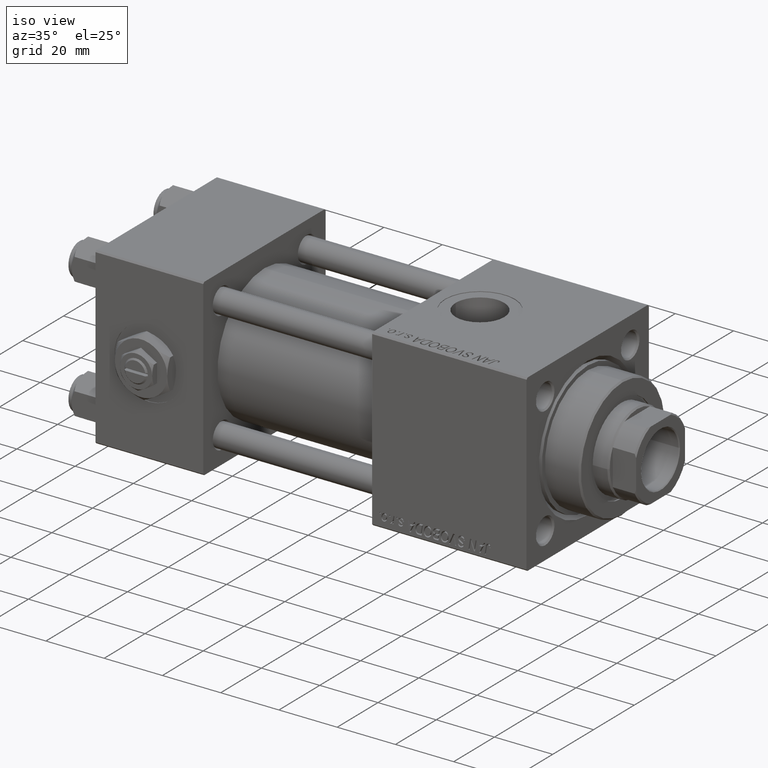
[diagram: clean part render]
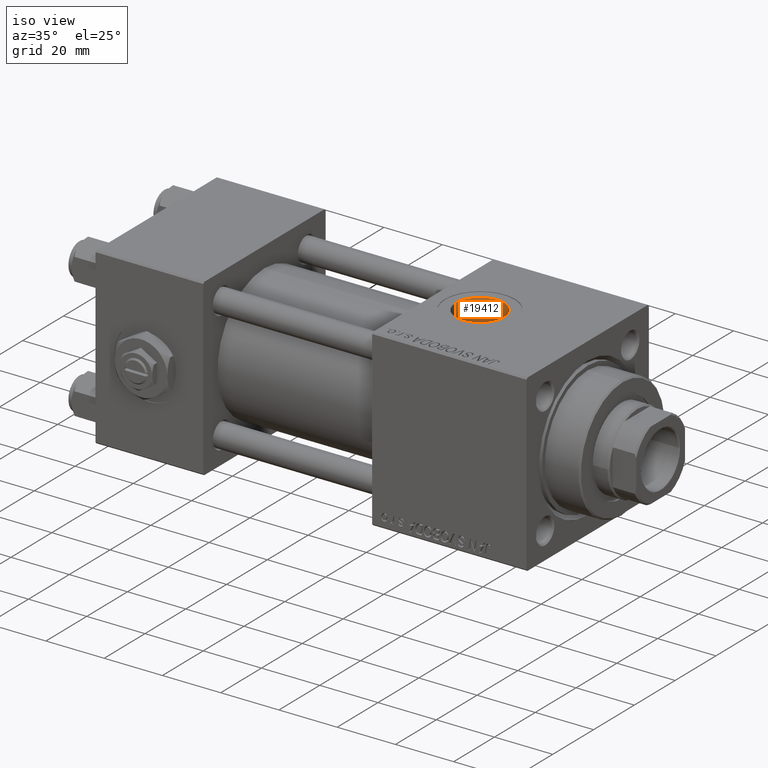
[diagram: same view with one face highlighted and labeled with its STEP entity id]
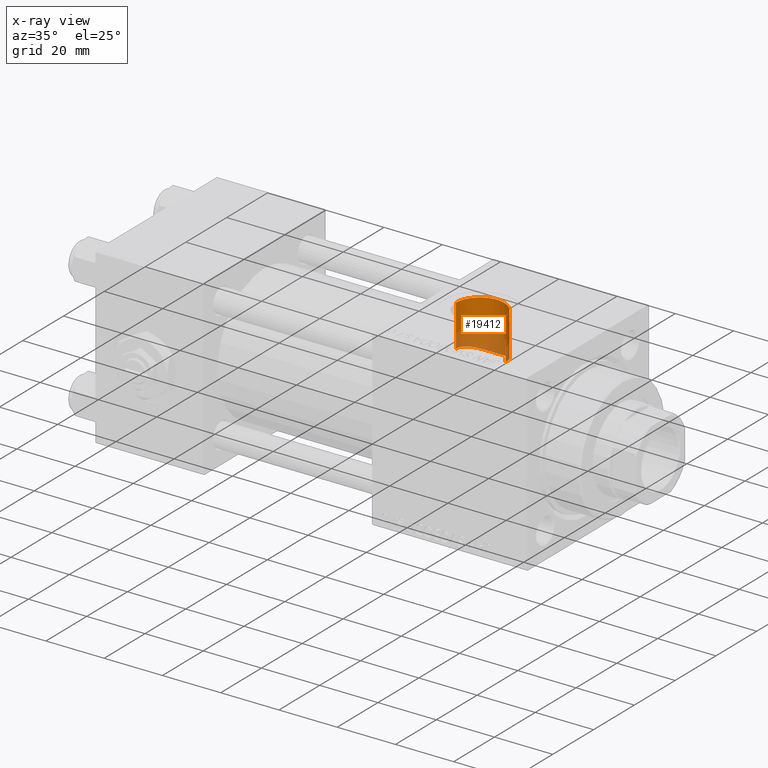
[diagram: x-ray of the same camera — body ghosted, the highlighted face saturated]
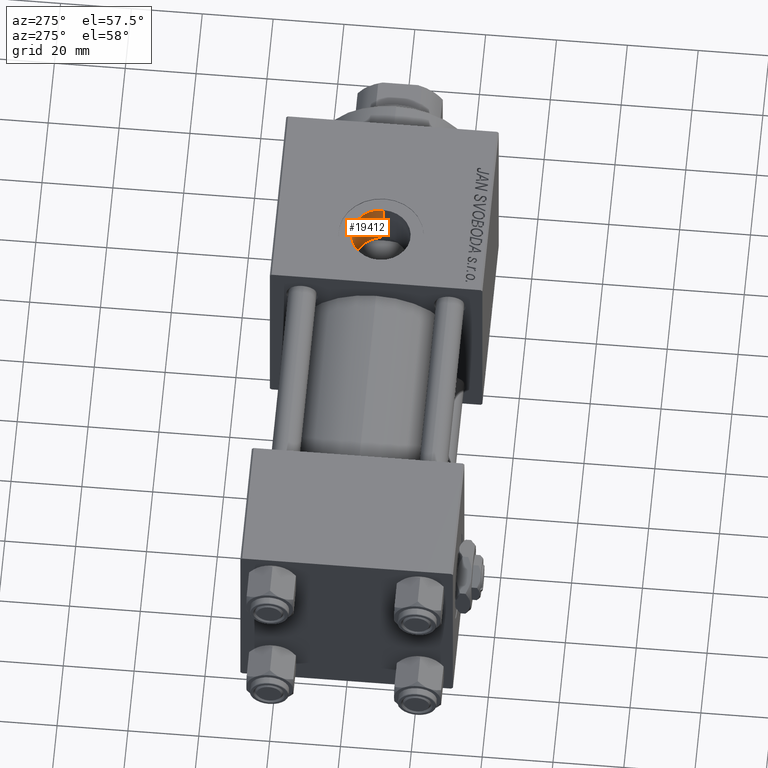
[diagram: same view with one face highlighted and labeled with its STEP entity id]
A machine part, iso view. The second image highlights one B-rep face of the part: STEP entity #19412.
The next image is the same camera in x-ray: the body ghosted, the highlighted face saturated — about 39% of this face is hidden behind the body in this view.
A second angle (auxiliary view) of the same face is appended — the face is thin or edge-on in the first view.
In plain terms, the highlighted cylindrical surface (edge-blend (fillet) strip) has radius 8.33 mm, axis along (0, 0, -1).
Its self-contained STEP definition (entity closure, byte-faithful):
#96 = CARTESIAN_POINT ( 'NONE',  ( 102.6700000000000017, 1.898304232322969090E-15, 15.50000000000000000 ) ) ;
#139 = EDGE_CURVE ( 'NONE', #30262, #9183, #26879, .T. ) ;
#350 = CARTESIAN_POINT ( 'NONE',  ( 105.7567134674389848, 6.493535737546777042, 14.07819411470014082 ) ) ;
#1521 = DIRECTION ( 'NONE',  ( -1.000000000000000000, 0.000000000000000000, 0.000000000000000000 ) ) ;
#2755 = DIRECTION ( 'NONE',  ( 0.000000000000000000, 0.000000000000000000, -1.000000000000000000 ) ) ;
#3447 = ORIENTED_EDGE ( 'NONE', *, *, #15780, .F. ) ;
#3775 = CARTESIAN_POINT ( 'NONE',  ( 114.7878989153691833, 7.423653917640752553, 13.60720322249609993 ) ) ;
#4028 = CARTESIAN_POINT ( 'NONE',  ( 119.2535736795806400, 1.251879847823932801, 15.45901168942802606 ) ) ;
#4123 = CARTESIAN_POINT ( 'NONE',  ( 119.2999999999999829, 0.7063285354565354002, 22.48891060056044466 ) ) ;
#4539 = CARTESIAN_POINT ( 'NONE',  ( 109.5605833038423214, 8.209149030830989346, 13.14769526555239132 ) ) ;
#5209 = VECTOR ( 'NONE', #24368, 1000.000000000000000 ) ;
#7006 = EDGE_LOOP ( 'NONE', ( #50660, #48804, #46075, #8341, #3447, #15831 ) ) ;
#7716 = CARTESIAN_POINT ( 'NONE',  ( 108.0235363201843626, 7.798107477347283378, 13.39787891672381726 ) ) ;
#7969 = CARTESIAN_POINT ( 'NONE',  ( 102.7748422588737753, 1.345113678925218048, 15.44384467796440674 ) ) ;
#8341 = ORIENTED_EDGE ( 'NONE', *, *, #139, .T. ) ;
#8487 = CARTESIAN_POINT ( 'NONE',  ( 103.7382412053277392, 4.114622947877636605, 14.95093430025992198 ) ) ;
#8740 = CARTESIAN_POINT ( 'NONE',  ( 115.7013846757646007, 6.896553212426882240, 13.88449017423041454 ) ) ;
#9183 = VERTEX_POINT ( 'NONE', #9905 ) ;
#9905 = CARTESIAN_POINT ( 'NONE',  ( 119.2999999999999545, 0.7063285354568809016, 15.48389808801386103 ) ) ;
#10271 = CARTESIAN_POINT ( 'NONE',  ( 119.3300000000000125, 2.755455270027974659E-15, 22.50000000000000355 ) ) ;
#11068 = VERTEX_POINT ( 'NONE', #41900 ) ;
#11652 = CARTESIAN_POINT ( 'NONE',  ( 109.2976579557377619, 8.158530844714508845, 13.17929287996982524 ) ) ;
#12158 = CARTESIAN_POINT ( 'NONE',  ( 116.9021014551138506, 5.901284207169522844, 14.33759116759386565 ) ) ;
#12564 = VERTEX_POINT ( 'NONE', #10271 ) ;
#12666 = CARTESIAN_POINT ( 'NONE',  ( 113.5653903393931046, 7.929573453247115822, 13.31850891624567446 ) ) ;
#14486 = EDGE_CURVE ( 'NONE', #25489, #11068, #47207, .T. ) ;
#15581 = CARTESIAN_POINT ( 'NONE',  ( 110.0961245563538142, 8.285231283310338313, 13.09988401430630311 ) ) ;
#15780 = EDGE_CURVE ( 'NONE', #20508, #9183, #21437, .T. ) ;
#15831 = ORIENTED_EDGE ( 'NONE', *, *, #19497, .T. ) ;
#15837 = CARTESIAN_POINT ( 'NONE',  ( 118.5428870207783518, 3.544564506934797521, 15.09123298641111077 ) ) ;
#16094 = CARTESIAN_POINT ( 'NONE',  ( 104.3108638884341275, 4.991865470557748097, 14.68134318030006291 ) ) ;
#16348 = CARTESIAN_POINT ( 'NONE',  ( 108.5224199253086539, 7.970776178815770052, 13.29429473676391460 ) ) ;
#16587 = VECTOR ( 'NONE', #2755, 1000.000000000000000 ) ;
#16610 = CARTESIAN_POINT ( 'NONE',  ( 103.0866881673992594, 2.655374492085076366, 15.27912538186902758 ) ) ;
#19366 = CARTESIAN_POINT ( 'NONE',  ( 119.3300000000000125, 0.2354428451521802246, 22.50000000000000355 ) ) ;
#19412 = ADVANCED_FACE ( 'NONE', ( #28842 ), #33835, .F. ) ;
#19497 = EDGE_CURVE ( 'NONE', #20508, #12564, #29378, .T. ) ;
#19616 = CARTESIAN_POINT ( 'NONE',  ( 119.3200361445783102, 0.4708856903043578401, 22.49630535626710781 ) ) ;
#20508 = VERTEX_POINT ( 'NONE', #44544 ) ;
#21049 = VECTOR ( 'NONE', #33283, 1000.000000000000000 ) ;
#21437 = LINE ( 'NONE', #33001, #5209 ) ;
#23730 = CARTESIAN_POINT ( 'NONE',  ( 117.9017814515971025, 4.693120186999104604, 14.77885283960388918 ) ) ;
#23987 = CARTESIAN_POINT ( 'NONE',  ( 118.9347458643765236, 2.549478185781939743, 15.29108801674690810 ) ) ;
#24249 = CARTESIAN_POINT ( 'NONE',  ( 104.6351521567280116, 5.399275359235517158, 14.53490046566677663 ) ) ;
#24368 = DIRECTION ( 'NONE',  ( 0.000000000000000000, 0.000000000000000000, -1.000000000000000000 ) ) ;
#24505 = CARTESIAN_POINT ( 'NONE',  ( 106.3914020546077808, 6.943847275614563941, 13.85860288735606716 ) ) ;
#24577 = AXIS2_PLACEMENT_3D ( 'NONE', #44363, #31785, #44611 ) ;
#24764 = CARTESIAN_POINT ( 'NONE',  ( 116.1213706297517092, 6.590259460215649234, 14.03424939317711662 ) ) ;
#25489 = VERTEX_POINT ( 'NONE', #34079 ) ;
#25887 = CARTESIAN_POINT ( 'NONE',  ( 102.6700000000000017, -3.469446951953613794E-15, 52.79999999999999716 ) ) ;
#26879 = B_SPLINE_CURVE_WITH_KNOTS ( 'NONE', 3,
 ( #96, #27933, #31872, #44192, #7969, #44447, #16610, #51558, #8487, #16094, #24249, #36323, #350, #24505, #39755, #40528, #47618, #7716, #16348, #11652, #4539, #15581, #32637, #32382, #31614, #35815, #48389, #48125, #12666, #28697, #27682, #3775, #44697, #8740, #24764, #12158, #40781, #23730, #51820, #15837, #47868, #43932, #23987, #40016, #4028, #36067 ),
 .UNSPECIFIED., .F., .F.,
 ( 4, 2, 2, 2, 2, 2, 2, 2, 2, 2, 2, 2, 2, 2, 2, 2, 2, 2, 2, 2, 2, 2, 4 ),
 ( 0.02586561750490627698, 0.02667257115183743754, 0.02747952479876859810, 0.02909343209263091923, 0.03070733938649324035, 0.03232124668035556148, 0.03393515397421788260, 0.03474210762114905010, 0.03554906126808020372, 0.03716296856194253179, 0.03796992220887369235, 0.03877687585580485291, 0.04039078314966713240, 0.04119773679659827215, 0.04200469044352941883, 0.04281164409046055164, 0.04361859773739169832, 0.04523250503125397781, 0.04684641232511625730, 0.04846031961897854373, 0.04926727326590967654, 0.05007422691284080241, 0.05168813420670308190 ),
 .UNSPECIFIED. ) ;
#27682 = CARTESIAN_POINT ( 'NONE',  ( 114.3094557415238199, 7.648942304453149710, 13.48185071310159877 ) ) ;
#27933 = CARTESIAN_POINT ( 'NONE',  ( 102.6700000000000301, 0.2692781161559530401, 15.50000000000000178 ) ) ;
#28697 = CARTESIAN_POINT ( 'NONE',  ( 114.0650487448085357, 7.750150897617437806, 13.42370947118256908 ) ) ;
#28842 = FACE_OUTER_BOUND ( 'NONE', #7006, .T. ) ;
#29378 = B_SPLINE_CURVE_WITH_KNOTS ( 'NONE', 3,
 ( #4123, #19616, #19366, #51650 ),
 .UNSPECIFIED., .F., .F.,
 ( 4, 4 ),
 ( 0.000000000000000000, 0.0007063285354565328363 ),
 .UNSPECIFIED. ) ;
#30262 = VERTEX_POINT ( 'NONE', #51727 ) ;
#31614 = CARTESIAN_POINT ( 'NONE',  ( 111.7204179385422833, 8.316316922132166667, 13.08044599360019689 ) ) ;
#31785 = DIRECTION ( 'NONE',  ( -0.000000000000000000, -0.000000000000000000, -1.000000000000000000 ) ) ;
#31872 = CARTESIAN_POINT ( 'NONE',  ( 102.6830263376666323, 0.5382373393380733839, 15.49298755787482129 ) ) ;
#32382 = CARTESIAN_POINT ( 'NONE',  ( 111.1827731937051169, 8.345639263937128405, 13.06143459154865383 ) ) ;
#32637 = CARTESIAN_POINT ( 'NONE',  ( 110.3699255016521477, 8.310562936261190359, 13.08375847227050315 ) ) ;
#33001 = CARTESIAN_POINT ( 'NONE',  ( 119.2999999999999829, 0.7063285354565354002, 52.79999999999999716 ) ) ;
#33283 = DIRECTION ( 'NONE',  ( 0.000000000000000000, 0.000000000000000000, -1.000000000000000000 ) ) ;
#33835 = CYLINDRICAL_SURFACE ( 'NONE', #37219, 8.330000000000003624 ) ;
#34079 = CARTESIAN_POINT ( 'NONE',  ( 102.6700000000000017, -3.469446951953613794E-15, 29.79999999999999716 ) ) ;
#35815 = CARTESIAN_POINT ( 'NONE',  ( 112.5206788388487524, 8.194464177599192212, 13.15686343614054188 ) ) ;
#36067 = CARTESIAN_POINT ( 'NONE',  ( 119.2999999999999545, 0.7063285354568809016, 15.48389808801386103 ) ) ;
#36323 = CARTESIAN_POINT ( 'NONE',  ( 105.3619139893282863, 6.154303259437239326, 14.23165687271051105 ) ) ;
#37219 = AXIS2_PLACEMENT_3D ( 'NONE', #41441, #37504, #1521 ) ;
#37504 = DIRECTION ( 'NONE',  ( 0.000000000000000000, 0.000000000000000000, -1.000000000000000000 ) ) ;
#39755 = CARTESIAN_POINT ( 'NONE',  ( 106.6103928475614424, 7.084409057837668833, 13.78705986442869502 ) ) ;
#40016 = CARTESIAN_POINT ( 'NONE',  ( 119.1550002228559180, 1.780279521112080543, 15.40614980614638796 ) ) ;
#40528 = CARTESIAN_POINT ( 'NONE',  ( 107.0641356425911823, 7.346187746824277554, 13.64937350183230791 ) ) ;
#40781 = CARTESIAN_POINT ( 'NONE',  ( 117.2636960965466528, 5.515983638965455071, 14.49185263653173905 ) ) ;
#40921 = EDGE_CURVE ( 'NONE', #11068, #12564, #49550, .T. ) ;
#41441 = CARTESIAN_POINT ( 'NONE',  ( 111.0000000000000000, -3.469446951953613794E-15, 52.79999999999999716 ) ) ;
#41685 = CARTESIAN_POINT ( 'NONE',  ( 119.3300000000000125, -2.449316168263869032E-15, 52.79999999999999716 ) ) ;
#41900 = CARTESIAN_POINT ( 'NONE',  ( 119.3300000000000125, -2.449316168263869821E-15, 29.79999999999999716 ) ) ;
#43932 = CARTESIAN_POINT ( 'NONE',  ( 118.8491620312710779, 2.801948762055240127, 15.24674929831629733 ) ) ;
#44192 = CARTESIAN_POINT ( 'NONE',  ( 102.7353150131716006, 1.075514947314752723, 15.46498077916762703 ) ) ;
#44363 = CARTESIAN_POINT ( 'NONE',  ( 111.0000000000000000, -3.469446951953613794E-15, 29.79999999999999716 ) ) ;
#44447 = CARTESIAN_POINT ( 'NONE',  ( 102.9323351773738153, 2.143895289495490797, 15.36035123208332820 ) ) ;
#44544 = CARTESIAN_POINT ( 'NONE',  ( 119.2999999999999829, 0.7063285354565354002, 22.48891060056044466 ) ) ;
#44611 = DIRECTION ( 'NONE',  ( 1.000000000000000000, 0.000000000000000000, 0.000000000000000000 ) ) ;
#44697 = CARTESIAN_POINT ( 'NONE',  ( 115.0228866172802498, 7.298933092229633601, 13.67473780800528793 ) ) ;
#45807 = LINE ( 'NONE', #25887, #16587 ) ;
#46075 = ORIENTED_EDGE ( 'NONE', *, *, #49214, .T. ) ;
#47207 = CIRCLE ( 'NONE', #24577, 8.330000000000003624 ) ;
#47618 = CARTESIAN_POINT ( 'NONE',  ( 107.3002806938655880, 7.468012193495424889, 13.58288275005224577 ) ) ;
#47868 = CARTESIAN_POINT ( 'NONE',  ( 118.6535066739792086, 3.299105492354843072, 15.14695296028893168 ) ) ;
#48125 = CARTESIAN_POINT ( 'NONE',  ( 113.3101403164748291, 8.007790053772909644, 13.27144766602743609 ) ) ;
#48389 = CARTESIAN_POINT ( 'NONE',  ( 112.7879913300362773, 8.140303239488185127, 13.19058330274244284 ) ) ;
#48804 = ORIENTED_EDGE ( 'NONE', *, *, #14486, .F. ) ;
#49214 = EDGE_CURVE ( 'NONE', #25489, #30262, #45807, .T. ) ;
#49550 = LINE ( 'NONE', #41685, #21049 ) ;
#50660 = ORIENTED_EDGE ( 'NONE', *, *, #40921, .F. ) ;
#51558 = CARTESIAN_POINT ( 'NONE',  ( 103.4884433949717533, 3.639785051709965913, 15.07496769168806949 ) ) ;
#51650 = CARTESIAN_POINT ( 'NONE',  ( 119.3300000000000125, 2.755455270027974659E-15, 22.50000000000000355 ) ) ;
#51727 = CARTESIAN_POINT ( 'NONE',  ( 102.6700000000000017, 1.898304232322969090E-15, 15.50000000000000000 ) ) ;
#51820 = CARTESIAN_POINT ( 'NONE',  ( 118.1821809494403368, 4.252752687106300833, 14.91311828418755425 ) ) ;